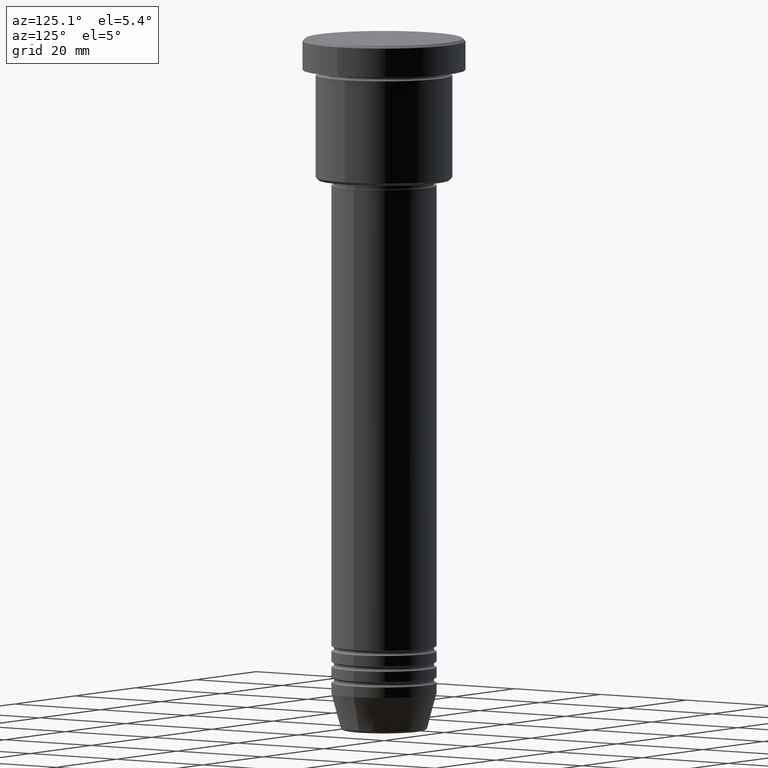
[diagram: clean part render]
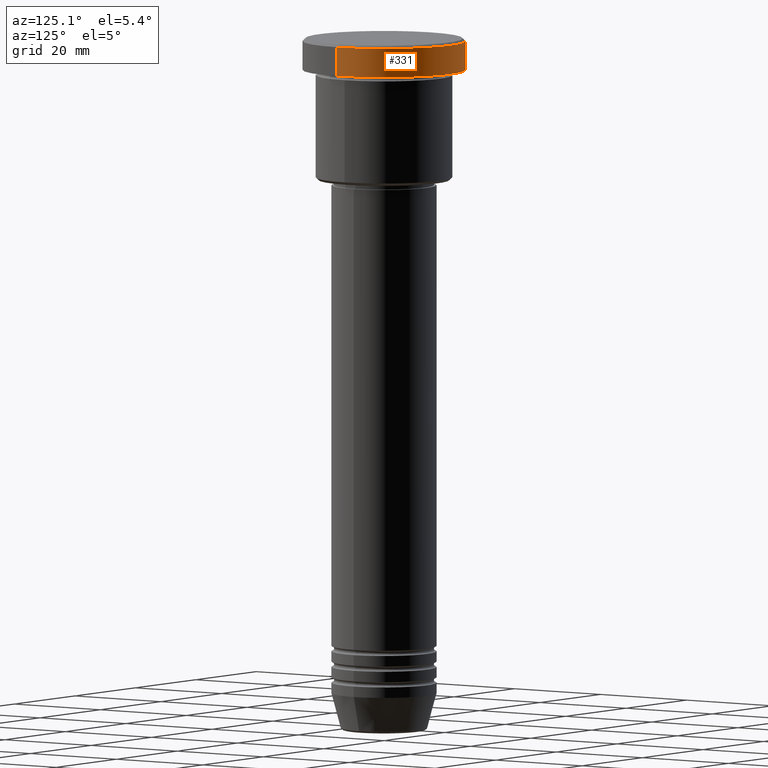
[diagram: same view with one face highlighted and labeled with its STEP entity id]
A machine part, auxiliary view. The second image highlights one B-rep face of the part: STEP entity #331.
In plain terms, the highlighted cylindrical surface (partial cylindrical patch) has radius 15.5 mm, axis along (-0, -0, 1).
Its self-contained STEP definition (entity closure, byte-faithful):
#39 = DIRECTION ( 'NONE',  ( -0.000000000000000000, -0.000000000000000000, 1.000000000000000000 ) ) ;
#73 = CIRCLE ( 'NONE', #701, 15.50000000000000000 ) ;
#74 = EDGE_CURVE ( 'NONE', #617, #440, #508, .T. ) ;
#122 = LINE ( 'NONE', #345, #1157 ) ;
#139 = DIRECTION ( 'NONE',  ( -0.000000000000000000, -0.000000000000000000, 1.000000000000000000 ) ) ;
#145 = CARTESIAN_POINT ( 'NONE',  ( 15.50000000000000000, 0.000000000000000000, -0.4999999999999848455 ) ) ;
#201 = DIRECTION ( 'NONE',  ( -0.000000000000000000, -0.000000000000000000, 1.000000000000000000 ) ) ;
#247 = DIRECTION ( 'NONE',  ( 1.000000000000000000, 0.000000000000000000, 0.000000000000000000 ) ) ;
#261 = LINE ( 'NONE', #669, #719 ) ;
#316 = VERTEX_POINT ( 'NONE', #676 ) ;
#331 = ADVANCED_FACE ( 'NONE', ( #506 ), #794, .T. ) ;
#336 = EDGE_CURVE ( 'NONE', #316, #617, #122, .T. ) ;
#345 = CARTESIAN_POINT ( 'NONE',  ( -15.50000000000000000, 1.898202538678397557E-15, 0.000000000000000000 ) ) ;
#383 = EDGE_CURVE ( 'NONE', #504, #440, #261, .T. ) ;
#397 = CARTESIAN_POINT ( 'NONE',  ( 15.50000000000000000, 0.000000000000000000, -5.999999999999995559 ) ) ;
#440 = VERTEX_POINT ( 'NONE', #145 ) ;
#504 = VERTEX_POINT ( 'NONE', #397 ) ;
#506 = FACE_OUTER_BOUND ( 'NONE', #722, .T. ) ;
#508 = CIRCLE ( 'NONE', #684, 15.50000000000000000 ) ;
#597 = DIRECTION ( 'NONE',  ( 1.000000000000000000, 0.000000000000000000, 0.000000000000000000 ) ) ;
#601 = DIRECTION ( 'NONE',  ( 1.000000000000000000, 0.000000000000000000, 0.000000000000000000 ) ) ;
#615 = DIRECTION ( 'NONE',  ( 0.000000000000000000, 0.000000000000000000, -1.000000000000000000 ) ) ;
#617 = VERTEX_POINT ( 'NONE', #1111 ) ;
#631 = DIRECTION ( 'NONE',  ( -0.000000000000000000, -0.000000000000000000, 1.000000000000000000 ) ) ;
#669 = CARTESIAN_POINT ( 'NONE',  ( 15.50000000000000000, 0.000000000000000000, 0.000000000000000000 ) ) ;
#676 = CARTESIAN_POINT ( 'NONE',  ( -15.50000000000000000, 1.898202538678397557E-15, -5.999999999999995559 ) ) ;
#684 = AXIS2_PLACEMENT_3D ( 'NONE', #1063, #615, #247 ) ;
#701 = AXIS2_PLACEMENT_3D ( 'NONE', #1024, #39, #601 ) ;
#719 = VECTOR ( 'NONE', #201, 1000.000000000000000 ) ;
#722 = EDGE_LOOP ( 'NONE', ( #933, #939, #1167, #841 ) ) ;
#794 = CYLINDRICAL_SURFACE ( 'NONE', #803, 15.50000000000000000 ) ;
#803 = AXIS2_PLACEMENT_3D ( 'NONE', #1166, #139, #597 ) ;
#805 = EDGE_CURVE ( 'NONE', #504, #316, #73, .T. ) ;
#841 = ORIENTED_EDGE ( 'NONE', *, *, #383, .F. ) ;
#933 = ORIENTED_EDGE ( 'NONE', *, *, #805, .T. ) ;
#939 = ORIENTED_EDGE ( 'NONE', *, *, #336, .T. ) ;
#1024 = CARTESIAN_POINT ( 'NONE',  ( 0.000000000000000000, 0.000000000000000000, -5.999999999999995559 ) ) ;
#1063 = CARTESIAN_POINT ( 'NONE',  ( 0.000000000000000000, 0.000000000000000000, -0.4999999999999848455 ) ) ;
#1111 = CARTESIAN_POINT ( 'NONE',  ( -15.50000000000000000, 1.898202538678397557E-15, -0.4999999999999848455 ) ) ;
#1157 = VECTOR ( 'NONE', #631, 1000.000000000000000 ) ;
#1166 = CARTESIAN_POINT ( 'NONE',  ( 0.000000000000000000, 0.000000000000000000, 0.000000000000000000 ) ) ;
#1167 = ORIENTED_EDGE ( 'NONE', *, *, #74, .T. ) ;